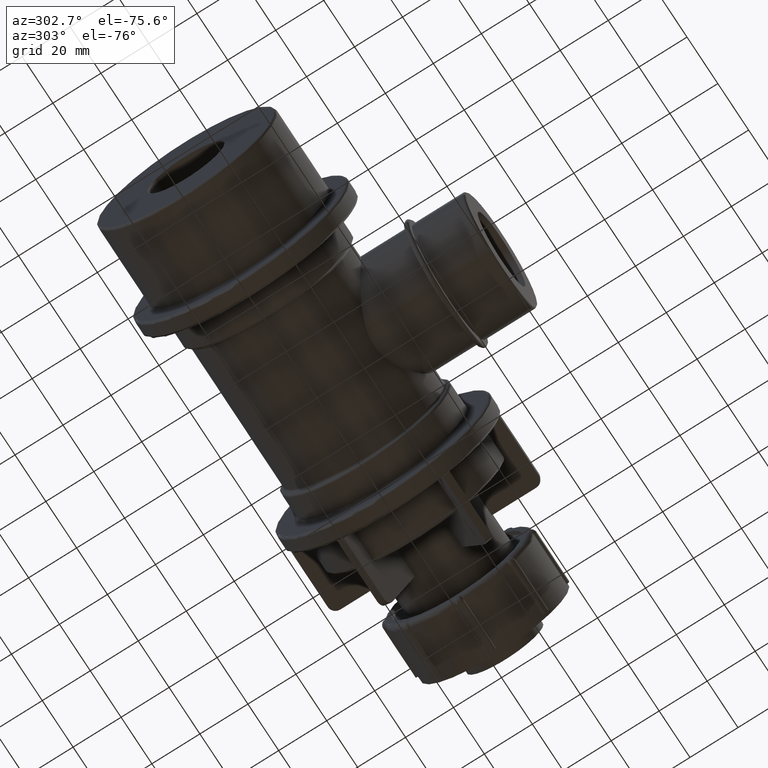
[diagram: clean part render]
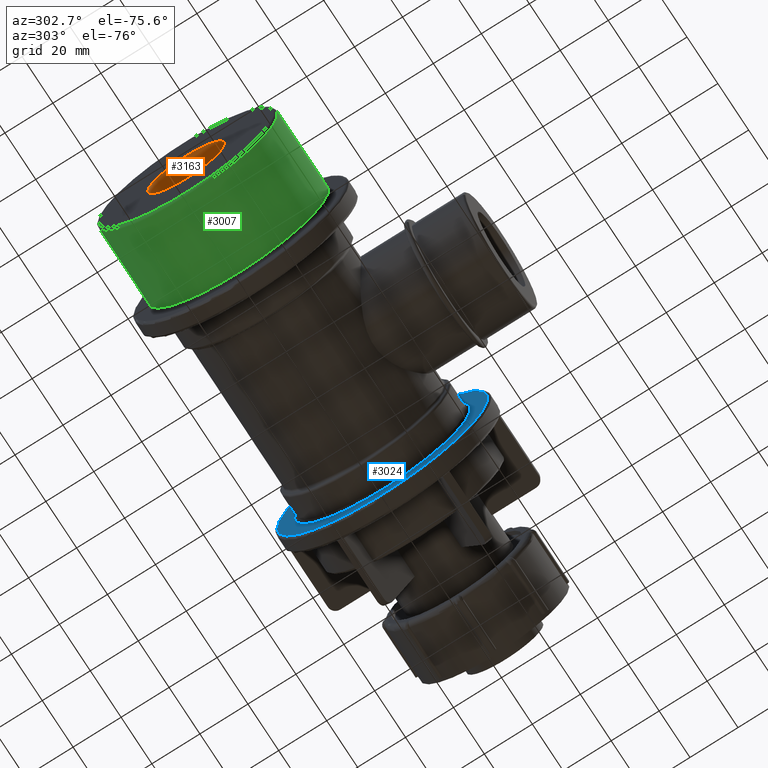
[diagram: same view with three faces highlighted in distinct colors, each labeled with its STEP entity id]
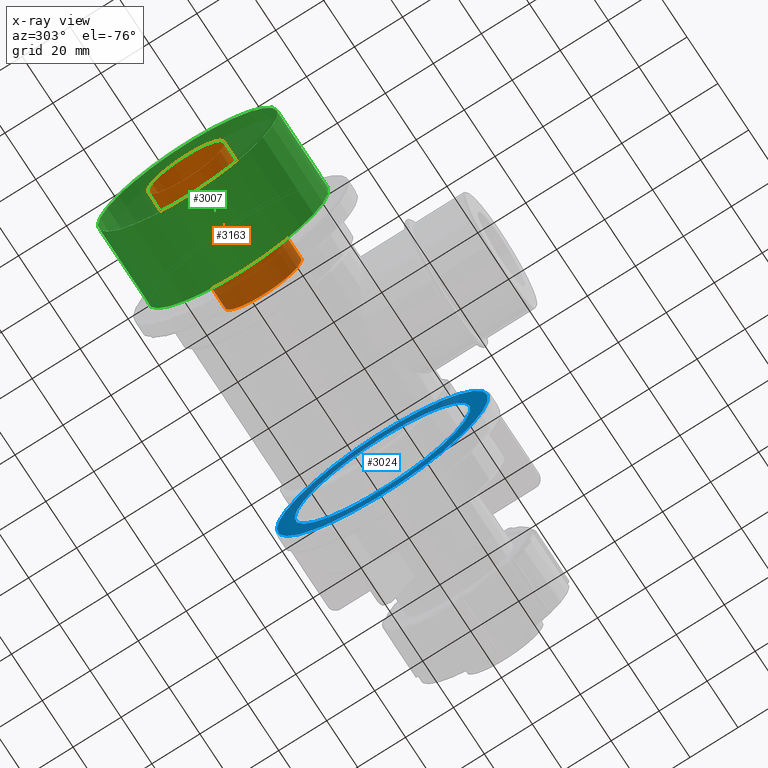
[diagram: x-ray of the same camera — body ghosted, the three highlighted faces saturated]
A machine part, auxiliary view with three faces highlighted in distinct colors.
The next image is the same camera in x-ray (body ghosted, the three faces saturated) — at least one of them is partly hidden behind the body in this view.
Their STEP definitions:

[orange] entity #3163 — the highlighted cylindrical surface (bore or boss wall) has radius 16 mm, axis along (1, 0, 0).
#514=CIRCLE('',#3233,16.);
#691=CIRCLE('',#3532,16.);
#786=FACE_BOUND('',#1217,.T.);
#956=FACE_OUTER_BOUND('',#1216,.T.);
#1216=EDGE_LOOP('',(#2732));
#1217=EDGE_LOOP('',(#2733));
#1339=VERTEX_POINT('',#4677);
#1556=VERTEX_POINT('',#5937);
#1633=EDGE_CURVE('',#1339,#1339,#514,.T.);
#1962=EDGE_CURVE('',#1556,#1556,#691,.T.);
#2732=ORIENTED_EDGE('',*,*,#1633,.F.);
#2733=ORIENTED_EDGE('',*,*,#1962,.T.);
#2993=CYLINDRICAL_SURFACE('',#3533,16.);
#3163=ADVANCED_FACE('',(#956,#786),#2993,.F.);
#3233=AXIS2_PLACEMENT_3D('',#4678,#3624,#3625);
#3532=AXIS2_PLACEMENT_3D('',#5938,#4326,#4327);
#3533=AXIS2_PLACEMENT_3D('',#5939,#4328,#4329);
#3624=DIRECTION('center_axis',(1.,0.,0.));
#3625=DIRECTION('ref_axis',(0.,0.,-1.));
#4326=DIRECTION('center_axis',(1.,0.,0.));
#4327=DIRECTION('ref_axis',(0.,0.,-1.));
#4328=DIRECTION('center_axis',(1.,0.,0.));
#4329=DIRECTION('ref_axis',(0.,1.,0.));
#4677=CARTESIAN_POINT('',(-84.7,16.,0.));
#4678=CARTESIAN_POINT('Origin',(-84.7,0.,0.));
#5937=CARTESIAN_POINT('',(-34.7,16.,0.));
#5938=CARTESIAN_POINT('Origin',(-34.7,0.,0.));
#5939=CARTESIAN_POINT('Origin',(-59.7,0.,0.));

[blue] entity #3024 — the highlighted planar face has unit normal (-1, 0, 0).
#428=PLANE('',#3264);
#529=CIRCLE('',#3263,36.625);
#530=CIRCLE('',#3265,44.);
#758=FACE_BOUND('',#1050,.T.);
#817=FACE_OUTER_BOUND('',#1049,.T.);
#1049=EDGE_LOOP('',(#2103));
#1050=EDGE_LOOP('',(#2104));
#1354=VERTEX_POINT('',#4722);
#1355=VERTEX_POINT('',#4725);
#1648=EDGE_CURVE('',#1354,#1354,#529,.T.);
#1649=EDGE_CURVE('',#1355,#1355,#530,.T.);
#2103=ORIENTED_EDGE('',*,*,#1649,.F.);
#2104=ORIENTED_EDGE('',*,*,#1648,.F.);
#3024=ADVANCED_FACE('',(#817,#758),#428,.T.);
#3263=AXIS2_PLACEMENT_3D('',#4723,#3684,#3685);
#3264=AXIS2_PLACEMENT_3D('',#4724,#3686,#3687);
#3265=AXIS2_PLACEMENT_3D('',#4726,#3688,#3689);
#3684=DIRECTION('center_axis',(-1.,0.,0.));
#3685=DIRECTION('ref_axis',(0.,-1.,1.83697019872103E-16));
#3686=DIRECTION('center_axis',(-1.,0.,0.));
#3687=DIRECTION('ref_axis',(0.,0.,1.));
#3688=DIRECTION('center_axis',(1.,0.,0.));
#3689=DIRECTION('ref_axis',(0.,-1.,1.83697019872103E-16));
#4722=CARTESIAN_POINT('',(42.7,36.625,-1.1213172254693E-14));
#4723=CARTESIAN_POINT('Origin',(42.7,0.,0.));
#4724=CARTESIAN_POINT('Origin',(42.7,45.,0.));
#4725=CARTESIAN_POINT('',(42.7,44.,-2.69422295812418E-15));
#4726=CARTESIAN_POINT('Origin',(42.7,0.,0.));

[green] entity #3007 — the highlighted cylindrical surface (bore or boss wall) has radius 37.5 mm, axis along (1, 0, 0).
#512=CIRCLE('',#3229,37.5);
#513=CIRCLE('',#3231,37.5);
#740=FACE_BOUND('',#1015,.T.);
#800=FACE_OUTER_BOUND('',#1014,.T.);
#1014=EDGE_LOOP('',(#2068));
#1015=EDGE_LOOP('',(#2069));
#1337=VERTEX_POINT('',#4671);
#1338=VERTEX_POINT('',#4674);
#1631=EDGE_CURVE('',#1337,#1337,#512,.T.);
#1632=EDGE_CURVE('',#1338,#1338,#513,.T.);
#2068=ORIENTED_EDGE('',*,*,#1632,.F.);
#2069=ORIENTED_EDGE('',*,*,#1631,.F.);
#2937=CYLINDRICAL_SURFACE('',#3230,37.5);
#3007=ADVANCED_FACE('',(#800,#740),#2937,.T.);
#3229=AXIS2_PLACEMENT_3D('',#4672,#3616,#3617);
#3230=AXIS2_PLACEMENT_3D('',#4673,#3618,#3619);
#3231=AXIS2_PLACEMENT_3D('',#4675,#3620,#3621);
#3616=DIRECTION('center_axis',(-1.,0.,0.));
#3617=DIRECTION('ref_axis',(0.,-1.,1.83697019872103E-16));
#3618=DIRECTION('center_axis',(1.,0.,0.));
#3619=DIRECTION('ref_axis',(0.,1.,0.));
#3620=DIRECTION('center_axis',(1.,0.,0.));
#3621=DIRECTION('ref_axis',(0.,-1.,1.83697019872103E-16));
#4671=CARTESIAN_POINT('',(-83.7,37.5,-1.14810637420064E-14));
#4672=CARTESIAN_POINT('Origin',(-83.7,0.,0.));
#4673=CARTESIAN_POINT('Origin',(-67.2,0.,0.));
#4674=CARTESIAN_POINT('',(-50.7,37.5,-2.29621274840129E-15));
#4675=CARTESIAN_POINT('Origin',(-50.7,0.,0.));